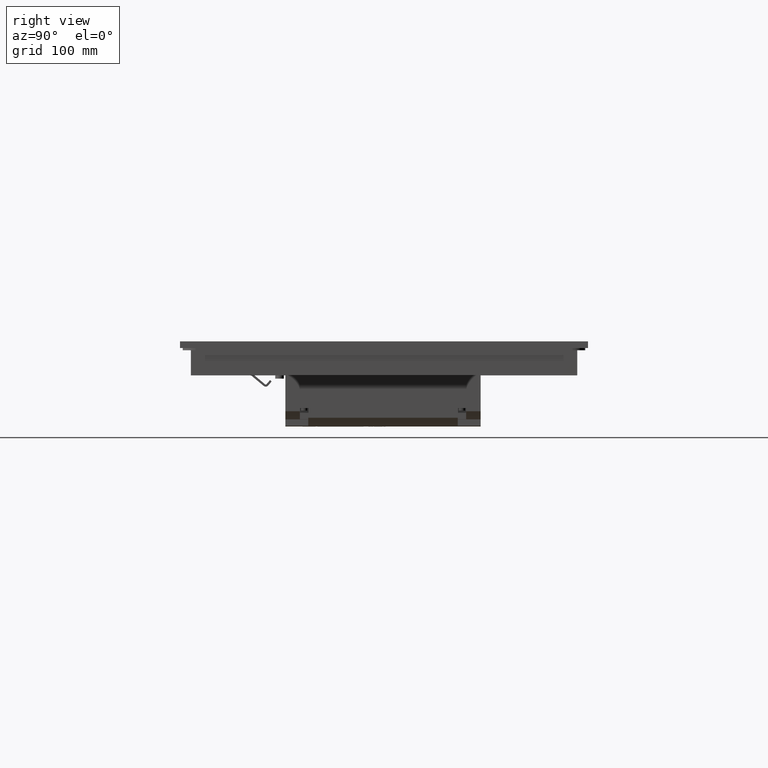
[diagram: clean part render]
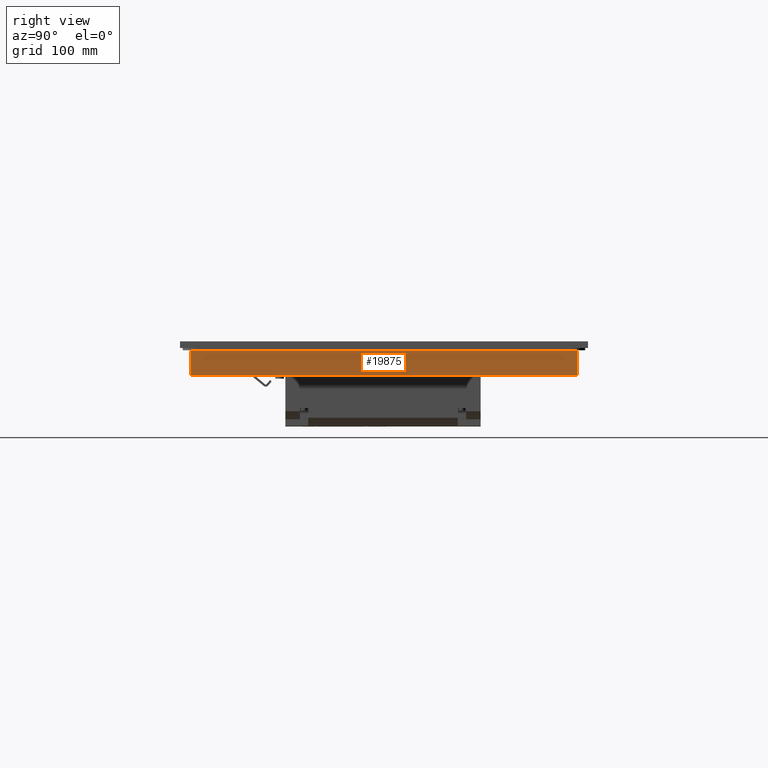
[diagram: same view with one face highlighted and labeled with its STEP entity id]
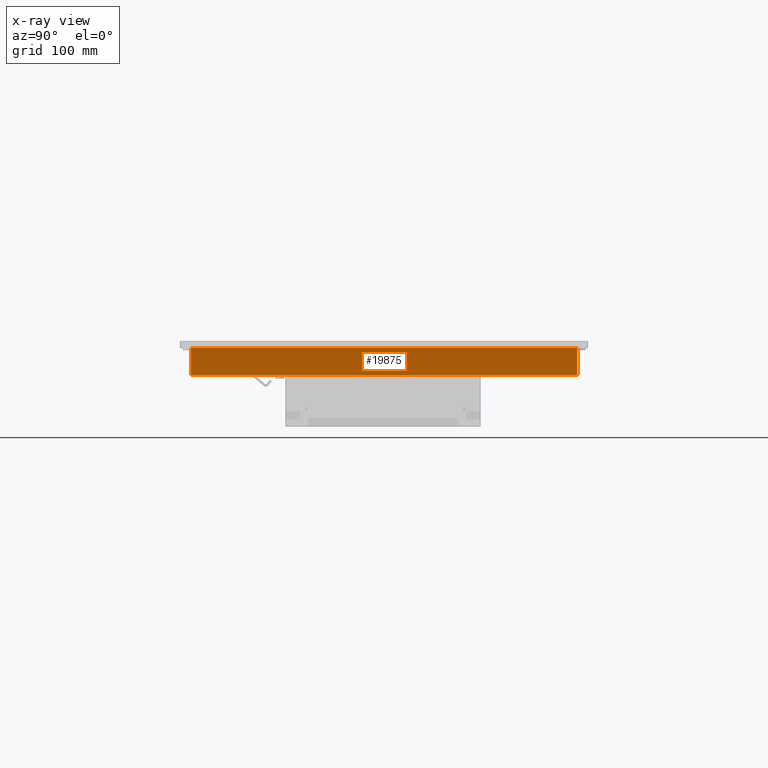
[diagram: x-ray of the same camera — body ghosted, the highlighted face saturated]
A machine part, right view. The second image highlights one B-rep face of the part: STEP entity #19875.
The next image is the same camera in x-ray: the body ghosted, the highlighted face saturated — about 0% of this face is hidden behind the body in this view.
In plain terms, the highlighted planar face has unit normal (1, 0, 0).
Its self-contained STEP definition (entity closure, byte-faithful):
#4647=LINE('',#68168,#9993);
#4738=LINE('',#68384,#10084);
#4742=LINE('',#68393,#10088);
#4743=LINE('',#68394,#10089);
#9993=VECTOR('',#56211,1.);
#10084=VECTOR('',#56388,1.);
#10088=VECTOR('',#56394,1.);
#10089=VECTOR('',#56395,1.);
#15030=FACE_OUTER_BOUND('',#23596,.T.);
#17439=PLANE('',#51596);
#19875=ADVANCED_FACE('',(#15030),#17439,.T.);
#23596=EDGE_LOOP('',(#28629,#28630,#28631,#28632));
#28629=ORIENTED_EDGE('',*,*,#45145,.F.);
#28630=ORIENTED_EDGE('',*,*,#45149,.F.);
#28631=ORIENTED_EDGE('',*,*,#45038,.T.);
#28632=ORIENTED_EDGE('',*,*,#45150,.T.);
#40241=VERTEX_POINT('',#68169);
#40242=VERTEX_POINT('',#68170);
#40323=VERTEX_POINT('',#68385);
#40324=VERTEX_POINT('',#68386);
#45038=EDGE_CURVE('',#40241,#40242,#4647,.T.);
#45145=EDGE_CURVE('',#40323,#40324,#4738,.T.);
#45149=EDGE_CURVE('',#40241,#40323,#4742,.T.);
#45150=EDGE_CURVE('',#40242,#40324,#4743,.T.);
#51596=AXIS2_PLACEMENT_3D('',#68395,#56396,#56397);
#56211=DIRECTION('',(0.,-1.,0.));
#56388=DIRECTION('',(0.,-1.,0.));
#56394=DIRECTION('',(0.,0.,1.));
#56395=DIRECTION('',(0.,0.,1.));
#56396=DIRECTION('',(-1.,0.,0.));
#56397=DIRECTION('',(0.,0.,1.));
#68168=CARTESIAN_POINT('',(-269.999999,144.45,-28.));
#68169=CARTESIAN_POINT('',(-269.999999,144.45,-28.));
#68170=CARTESIAN_POINT('',(-269.999999,-215.55,-28.));
#68384=CARTESIAN_POINT('',(-269.999999,144.45,-2.5));
#68385=CARTESIAN_POINT('',(-269.999999,144.45,-2.5));
#68386=CARTESIAN_POINT('',(-269.999999,-215.55,-2.5));
#68393=CARTESIAN_POINT('',(-269.999999,144.45,-28.));
#68394=CARTESIAN_POINT('',(-269.999999,-215.55,-28.));
#68395=CARTESIAN_POINT('',(-269.999999,144.45,-28.));